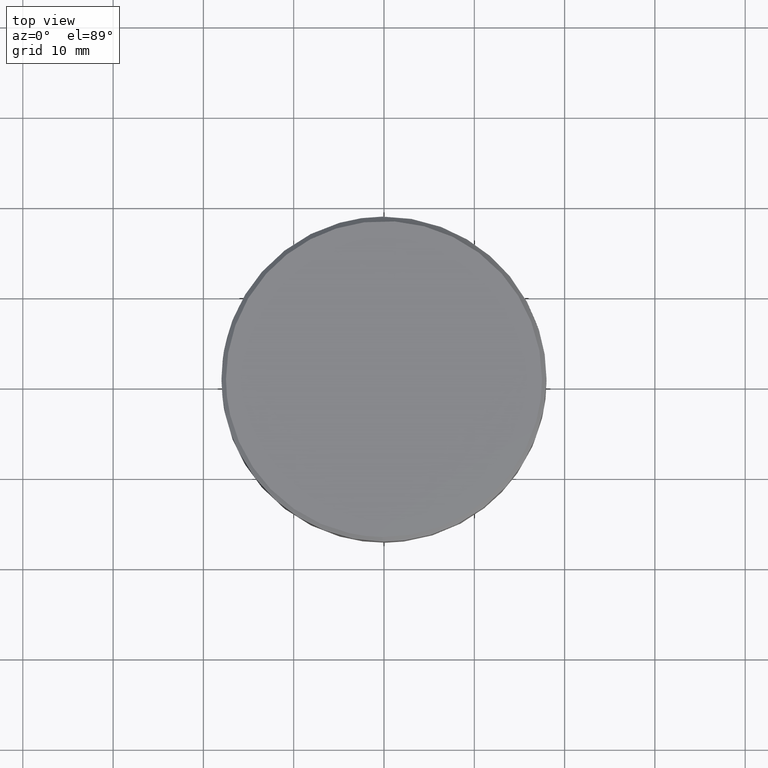
[diagram: clean part render]
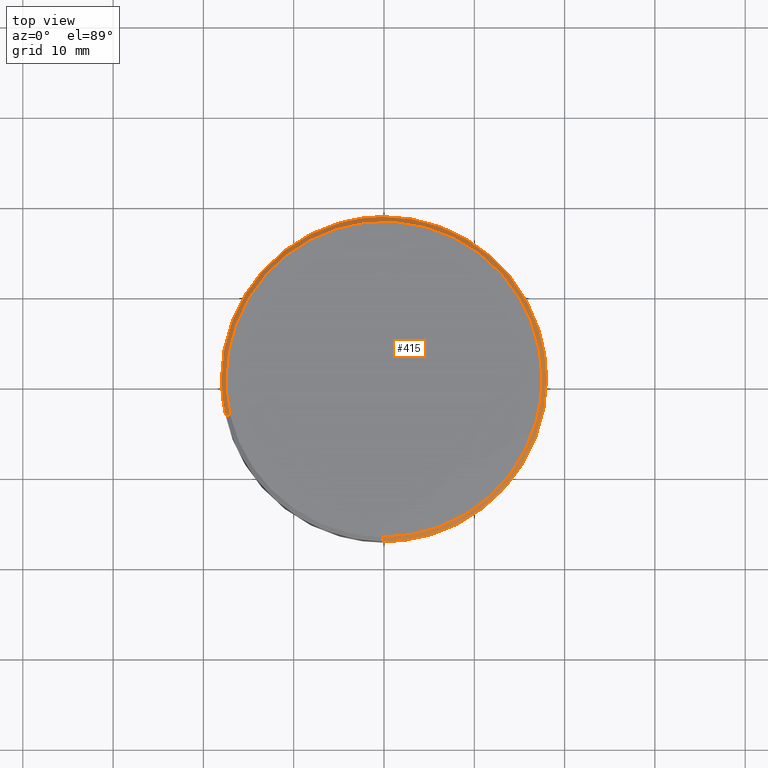
[diagram: same view with one face highlighted and labeled with its STEP entity id]
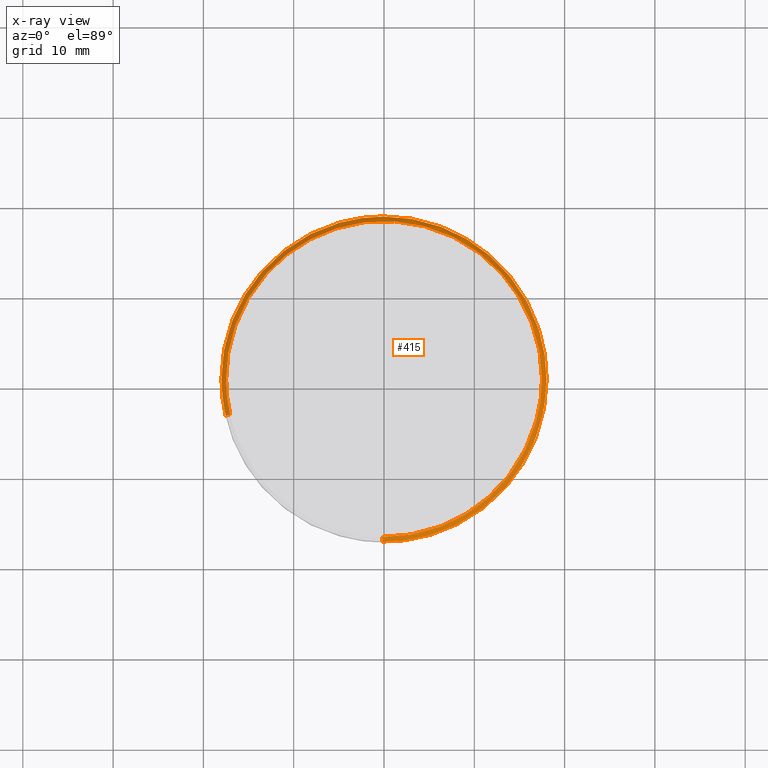
[diagram: x-ray of the same camera — body ghosted, the highlighted face saturated]
A machine part, top view. The second image highlights one B-rep face of the part: STEP entity #415.
The next image is the same camera in x-ray: the body ghosted, the highlighted face saturated — about 0% of this face is hidden behind the body in this view.
In plain terms, the highlighted face is a freeform B-spline surface patch.
Its self-contained STEP definition (entity closure, byte-faithful):
#245=CARTESIAN_POINT('',(-17.036639953710658,-3.945320688819989,23.012499999999999));
#246=CARTESIAN_POINT('',(-17.504948331500820,-1.923076656205386,23.012500000000003));
#247=CARTESIAN_POINT('',(-17.486834129584739,0.152605289527814,23.012499999999999));
#248=CARTESIAN_POINT('',(-17.334228840056934,17.639439419112552,23.012500000000006));
#249=CARTESIAN_POINT('',(0.152605289527814,17.486834129584739,23.012499999999999));
#250=CARTESIAN_POINT('',(17.639439419112552,17.334228840056934,23.012500000000006));
#251=CARTESIAN_POINT('',(17.486834129584739,-0.152605289527814,23.012499999999999));
#252=CARTESIAN_POINT('',(17.334228840056934,-17.639439419112552,23.012500000000006));
#253=CARTESIAN_POINT('',(-0.152605289527814,-17.486834129584739,23.012499999999999));
#254=CARTESIAN_POINT('',(-17.548408927302248,-4.063835415015588,22.487187499999994));
#255=CARTESIAN_POINT('',(-18.030784967405925,-1.980844559334066,22.487187499999990));
#256=CARTESIAN_POINT('',(-18.012126627294339,0.157189447706803,22.487187500000001));
#257=CARTESIAN_POINT('',(-17.854937179587541,18.169316075001138,22.487187500000005));
#258=CARTESIAN_POINT('',(0.157189447706803,18.012126627294339,22.487187500000001));
#259=CARTESIAN_POINT('',(18.169316075001138,17.854937179587541,22.487187500000005));
#260=CARTESIAN_POINT('',(18.012126627294339,-0.157189447706803,22.487187500000001));
#261=CARTESIAN_POINT('',(17.854937179587541,-18.169316075001138,22.487187500000005));
#262=CARTESIAN_POINT('',(-0.157189447706803,-18.012126627294339,22.487187500000001));
#270=(BOUNDED_SURFACE()B_SPLINE_SURFACE(2,1,((#245,#254),(#246,#255),(#247,#256),(#248,#257),(#249,#258),(#250,#259),(#251,#260),(#252,#261),(#253,#262)),.UNSPECIFIED.,.F.,.F.,.U.)B_SPLINE_SURFACE_WITH_KNOTS((3,2,2,2,3),(2,2),(0.0,4.775136789749517,34.619741725683980,64.464346661618450,94.308951597552920),(0.0,1.0),.UNSPECIFIED.)GEOMETRIC_REPRESENTATION_ITEM()RATIONAL_B_SPLINE_SURFACE(((0.921270302782944,0.921270302782944),(0.953137084989848,0.953137084989848),(1.0,1.0),(0.707106781186548,0.707106781186548),(1.0,1.0),(0.707106781186548,0.707106781186548),(1.0,1.0),(0.707106781186548,0.707106781186548),(1.0,1.0)))REPRESENTATION_ITEM('')SURFACE());
#271=CARTESIAN_POINT('',(-17.535926757211090,-4.060944811968877,22.499999999996419));
#272=VERTEX_POINT('',#271);
#273=CARTESIAN_POINT('',(-18.0,0.0,22.500000000000000));
#274=VERTEX_POINT('',#273);
#275=CARTESIAN_POINT('',(-17.535926757211083,-4.060944811968877,22.499999999996422));
#276=CARTESIAN_POINT('',(-18.0,-2.056988892266935,22.500000000000004));
#277=CARTESIAN_POINT('',(-18.0,0.0,22.500000000000000));
#285=(BOUNDED_CURVE()B_SPLINE_CURVE(2,(#275,#276,#277),.UNSPECIFIED.,.F.,.U.)B_SPLINE_CURVE_WITH_KNOTS((3,3),(0.961422971784043,1.0),.UNSPECIFIED.)CURVE()GEOMETRIC_REPRESENTATION_ITEM()RATIONAL_B_SPLINE_CURVE((0.923556557441867,0.954804200134283,1.0))REPRESENTATION_ITEM(''));
#286=EDGE_CURVE('',#272,#274,#285,.T.);
#287=ORIENTED_EDGE('',*,*,#286,.F.);
#288=CARTESIAN_POINT('',(-17.048817680625131,-3.948140789385914,22.999999999999769));
#289=VERTEX_POINT('',#288);
#290=CARTESIAN_POINT('',(-17.048817680625131,-3.948140789385914,22.999999999999769));
#291=CARTESIAN_POINT('',(-17.535926757211090,-4.060944811968877,22.499999999996419));
#292=QUASI_UNIFORM_CURVE('',1,(#290,#291),.UNSPECIFIED.,.F.,.U.);
#293=EDGE_CURVE('',#289,#272,#292,.T.);
#294=ORIENTED_EDGE('',*,*,#293,.F.);
#295=CARTESIAN_POINT('',(-17.500000000000000,0.0,23.0));
#296=VERTEX_POINT('',#295);
#297=CARTESIAN_POINT('',(-17.500000000000000,0.0,23.0));
#298=CARTESIAN_POINT('',(-17.500000000000000,-1.999850311897530,23.0));
#299=CARTESIAN_POINT('',(-17.048817680625131,-3.948140789385913,22.999999999999780));
#307=(BOUNDED_CURVE()B_SPLINE_CURVE(2,(#297,#298,#299),.UNSPECIFIED.,.F.,.U.)B_SPLINE_CURVE_WITH_KNOTS((3,3),(0.500000000000000,0.538577028215430),.UNSPECIFIED.)CURVE()GEOMETRIC_REPRESENTATION_ITEM()RATIONAL_B_SPLINE_CURVE((1.0,0.954804200134902,0.923556557442722))REPRESENTATION_ITEM(''));
#308=EDGE_CURVE('',#296,#289,#307,.T.);
#309=ORIENTED_EDGE('',*,*,#308,.F.);
#310=CARTESIAN_POINT('',(17.500000000000000,0.0,23.0));
#311=VERTEX_POINT('',#310);
#312=CARTESIAN_POINT('',(17.500000000000000,0.0,23.0));
#313=CARTESIAN_POINT('',(17.499999999999996,17.499999999999996,22.999999999999993));
#314=CARTESIAN_POINT('',(0.0,17.500000000000000,23.0));
#315=CARTESIAN_POINT('',(-17.499999999999996,17.499999999999996,22.999999999999993));
#316=CARTESIAN_POINT('',(-17.500000000000000,0.0,23.0));
#324=(BOUNDED_CURVE()B_SPLINE_CURVE(2,(#312,#313,#314,#315,#316),.UNSPECIFIED.,.F.,.U.)B_SPLINE_CURVE_WITH_KNOTS((3,2,3),(0.0,0.250000000000000,0.500000000000000),.UNSPECIFIED.)CURVE()GEOMETRIC_REPRESENTATION_ITEM()RATIONAL_B_SPLINE_CURVE((1.0,0.707106781186548,1.0,0.707106781186548,1.0))REPRESENTATION_ITEM(''));
#325=EDGE_CURVE('',#311,#296,#324,.T.);
#326=ORIENTED_EDGE('',*,*,#325,.F.);
#327=CARTESIAN_POINT('',(-0.152714371282346,-17.499333653630739,22.999999999991751));
#328=VERTEX_POINT('',#327);
#329=CARTESIAN_POINT('',(-0.152714371282346,-17.499333653630735,22.999999999991754));
#330=CARTESIAN_POINT('',(-0.076358639423012,-17.499999999999993,23.000000000000004));
#331=CARTESIAN_POINT('',(0.0,-17.500000000000000,23.0));
#332=CARTESIAN_POINT('',(17.499999999999996,-17.499999999999996,22.999999999999993));
#333=CARTESIAN_POINT('',(17.500000000000000,0.0,23.0));
#341=(BOUNDED_CURVE()B_SPLINE_CURVE(2,(#329,#330,#331,#332,#333),.UNSPECIFIED.,.F.,.U.)B_SPLINE_CURVE_WITH_KNOTS((3,2,3),(0.748460105663790,0.750000000000000,1.0),.UNSPECIFIED.)CURVE()GEOMETRIC_REPRESENTATION_ITEM()RATIONAL_B_SPLINE_CURVE((0.996414028097576,0.998195901564940,1.0,0.707106781186548,1.0))REPRESENTATION_ITEM(''));
#342=EDGE_CURVE('',#328,#311,#341,.T.);
#343=ORIENTED_EDGE('',*,*,#342,.F.);
#344=CARTESIAN_POINT('',(-0.157077639014598,-17.999314615160650,22.499999999994049));
#345=VERTEX_POINT('',#344);
#346=CARTESIAN_POINT('',(-0.152714371282346,-17.499333653630739,22.999999999991751));
#347=CARTESIAN_POINT('',(-0.157077639014598,-17.999314615160650,22.499999999994049));
#348=QUASI_UNIFORM_CURVE('',1,(#346,#347),.UNSPECIFIED.,.F.,.U.);
#349=EDGE_CURVE('',#328,#345,#348,.T.);
#350=ORIENTED_EDGE('',*,*,#349,.T.);
#351=CARTESIAN_POINT('',(2.234285799115181,-17.860794130372089,22.499999999999989));
#352=VERTEX_POINT('',#351);
#353=CARTESIAN_POINT('',(2.234285799115181,-17.860794130372092,22.499999999999982));
#354=CARTESIAN_POINT('',(1.121479469692560,-18.000000000000004,22.500000000000004));
#355=CARTESIAN_POINT('',(0.0,-18.0,22.500000000000000));
#356=CARTESIAN_POINT('',(-0.078540314816423,-17.999999999999996,22.500000000000000));
#357=CARTESIAN_POINT('',(-0.157077639014598,-17.999314615160653,22.499999999994046));
#365=(BOUNDED_CURVE()B_SPLINE_CURVE(2,(#353,#354,#355,#356,#357),.UNSPECIFIED.,.F.,.U.)B_SPLINE_CURVE_WITH_KNOTS((3,2,3),(0.728526243239963,0.750000000000000,0.751539894335844),.UNSPECIFIED.)CURVE()GEOMETRIC_REPRESENTATION_ITEM()RATIONAL_B_SPLINE_CURVE((0.954005764469317,0.974841929050143,1.0,0.998195901565368,0.996414028098422))REPRESENTATION_ITEM(''));
#366=EDGE_CURVE('',#352,#345,#365,.T.);
#367=ORIENTED_EDGE('',*,*,#366,.F.);
#368=CARTESIAN_POINT('',(18.0,0.0,22.500000000000000));
#369=VERTEX_POINT('',#368);
#370=CARTESIAN_POINT('',(18.0,0.0,22.500000000000000));
#371=CARTESIAN_POINT('',(18.000000000000004,-15.888591153580794,22.500000000000000));
#372=CARTESIAN_POINT('',(2.234285799115181,-17.860794130372092,22.499999999999982));
#380=(BOUNDED_CURVE()B_SPLINE_CURVE(2,(#370,#371,#372),.UNSPECIFIED.,.F.,.U.)B_SPLINE_CURVE_WITH_KNOTS((3,3),(0.500000000000000,0.728526243239963),.UNSPECIFIED.)CURVE()GEOMETRIC_REPRESENTATION_ITEM()RATIONAL_B_SPLINE_CURVE((1.0,0.732264852136405,0.954005764469317))REPRESENTATION_ITEM(''));
#381=EDGE_CURVE('',#369,#352,#380,.T.);
#382=ORIENTED_EDGE('',*,*,#381,.F.);
#383=CARTESIAN_POINT('',(-0.157059840432598,17.999314770462970,22.499999999999879));
#384=VERTEX_POINT('',#383);
#385=CARTESIAN_POINT('',(-0.157059840432598,17.999314770462966,22.499999999999879));
#386=CARTESIAN_POINT('',(-0.078531414995351,18.0,22.500000000000000));
#387=CARTESIAN_POINT('',(0.0,18.0,22.500000000000000));
#388=CARTESIAN_POINT('',(18.000000000000007,18.000000000000007,22.500000000000004));
#389=CARTESIAN_POINT('',(18.0,0.0,22.500000000000000));
#397=(BOUNDED_CURVE()B_SPLINE_CURVE(2,(#385,#386,#387,#388,#389),.UNSPECIFIED.,.F.,.U.)B_SPLINE_CURVE_WITH_KNOTS((3,2,3),(0.248460279843010,0.250000000000000,0.500000000000000),.UNSPECIFIED.)CURVE()GEOMETRIC_REPRESENTATION_ITEM()RATIONAL_B_SPLINE_CURVE((0.996414431197377,0.998196105628589,1.0,0.707106781186547,1.0))REPRESENTATION_ITEM(''));
#398=EDGE_CURVE('',#384,#369,#397,.T.);
#399=ORIENTED_EDGE('',*,*,#398,.F.);
#400=CARTESIAN_POINT('',(-18.0,0.0,22.500000000000000));
#401=CARTESIAN_POINT('',(-18.000000000000007,17.843619435952210,22.500000000000007));
#402=CARTESIAN_POINT('',(-0.157059840432598,17.999314770462966,22.499999999999879));
#410=(BOUNDED_CURVE()B_SPLINE_CURVE(2,(#400,#401,#402),.UNSPECIFIED.,.F.,.U.)B_SPLINE_CURVE_WITH_KNOTS((3,3),(0.0,0.248460279843010),.UNSPECIFIED.)CURVE()GEOMETRIC_REPRESENTATION_ITEM()RATIONAL_B_SPLINE_CURVE((1.0,0.708910675557958,0.996414431197377))REPRESENTATION_ITEM(''));
#411=EDGE_CURVE('',#274,#384,#410,.T.);
#412=ORIENTED_EDGE('',*,*,#411,.F.);
#413=EDGE_LOOP('',(#287,#294,#309,#326,#343,#350,#367,#382,#399,#412));
#414=FACE_OUTER_BOUND('',#413,.T.);
#415=ADVANCED_FACE('',(#414),#270,.T.);